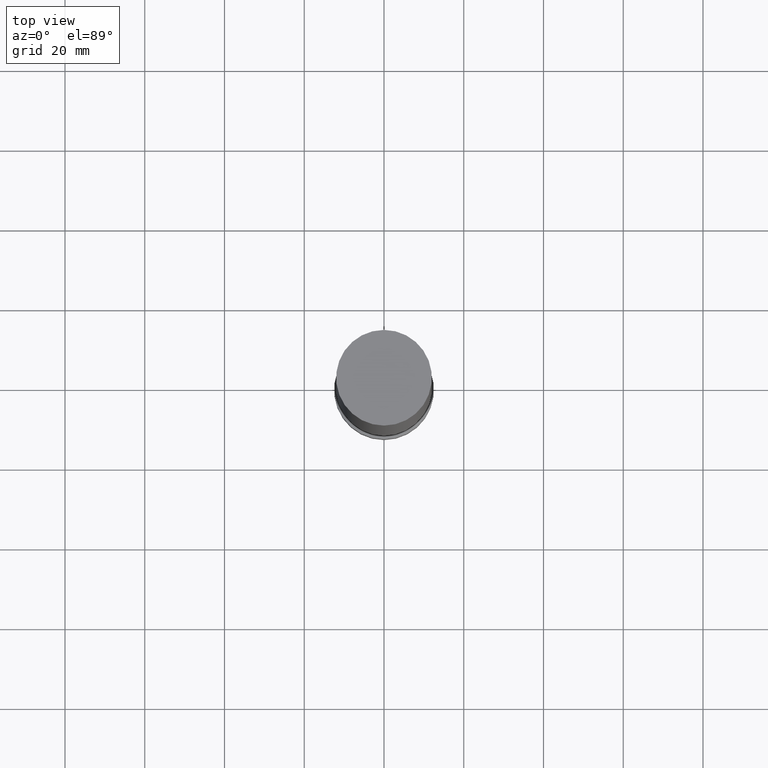
[diagram: clean part render]
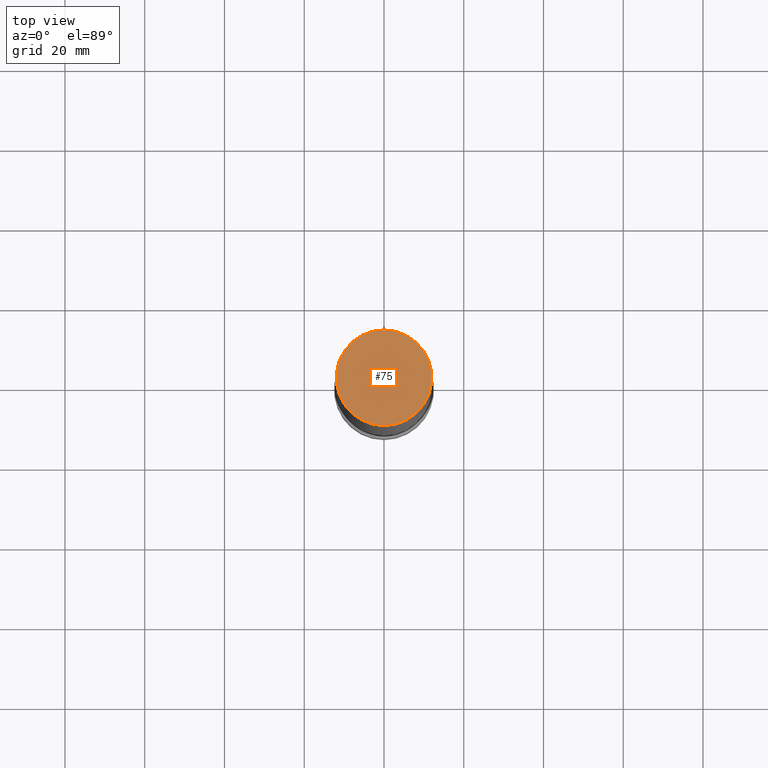
[diagram: same view with one face highlighted and labeled with its STEP entity id]
A machine part, top view. The second image highlights one B-rep face of the part: STEP entity #75.
In plain terms, the highlighted planar face has unit normal (-0, -0, 1).
Its self-contained STEP definition (entity closure, byte-faithful):
#75=ADVANCED_FACE('',(#83),#84,.T.);
#83=FACE_OUTER_BOUND('',#102,.T.);
#84=PLANE('',#103);
#102=EDGE_LOOP('',(#121));
#103=AXIS2_PLACEMENT_3D('',#122,#123,#124);
#121=ORIENTED_EDGE('',*,*,#154,.F.);
#122=CARTESIAN_POINT('',(-1.10218211923264E-014,6.00000000000041,180.000000000003));
#123=DIRECTION('',(-6.12323399573677E-017,-3.02553347916583E-014,1.0));
#124=DIRECTION('',(1.85743209821756E-030,-1.0,-3.02553347916583E-014));
#154=EDGE_CURVE('',#160,#160,#161,.T.);
#160=VERTEX_POINT('',#172);
#161=CIRCLE('',#173,12.0000000000004);
#172=CARTESIAN_POINT('',(-1.10218211923264E-014,12.0000000000006,180.000000000003));
#173=AXIS2_PLACEMENT_3D('',#184,#185,#186);
#184=CARTESIAN_POINT('',(-1.10218211923264E-014,1.88714599373593E-013,180.000000000003));
#185=DIRECTION('',(6.12323399573677E-017,-1.04841444096439E-015,-1.0));
#186=DIRECTION('',(5.93697167345758E-032,1.0,-1.04841444096439E-015));